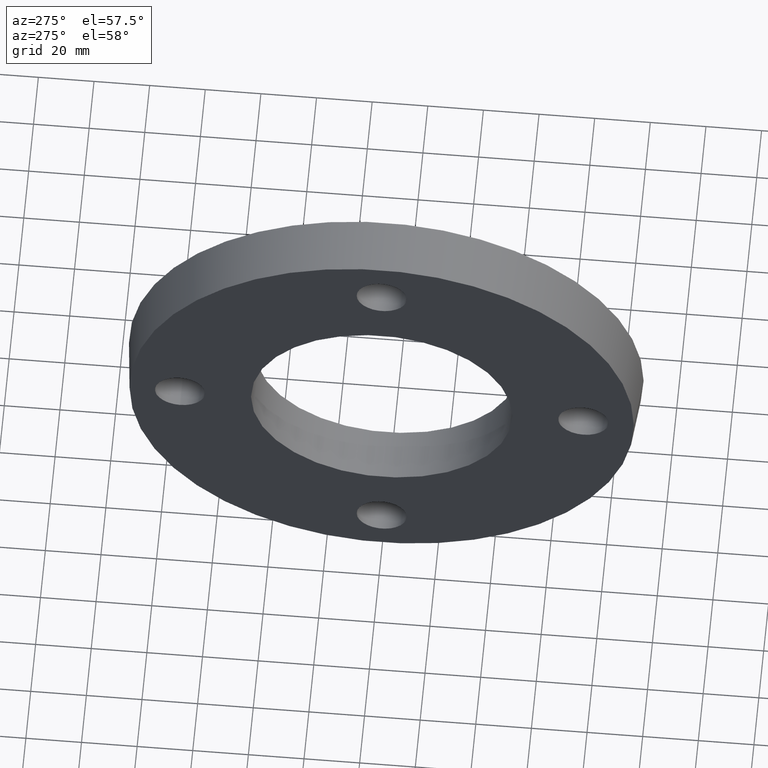
[diagram: clean part render]
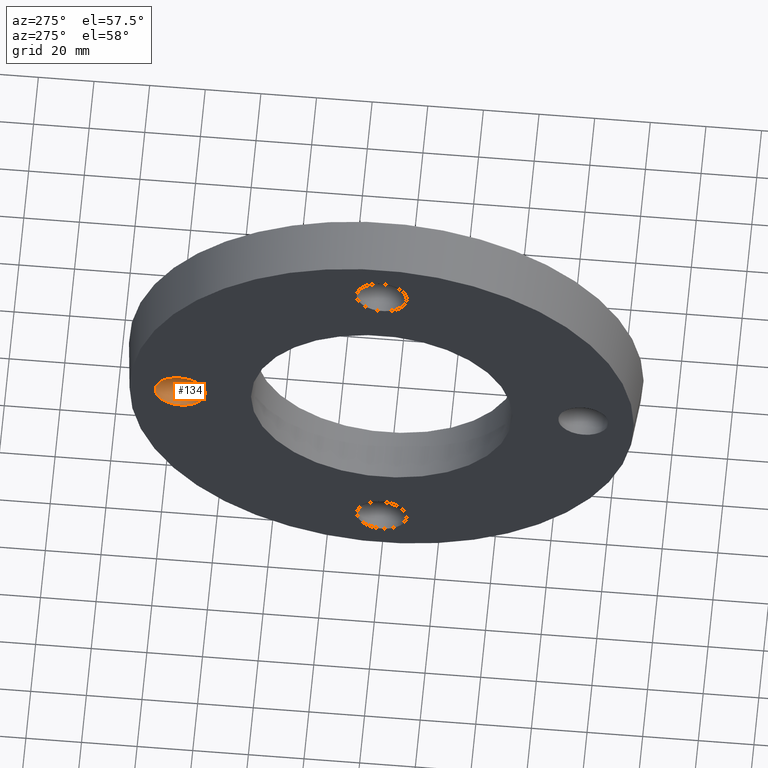
[diagram: same view with one face highlighted and labeled with its STEP entity id]
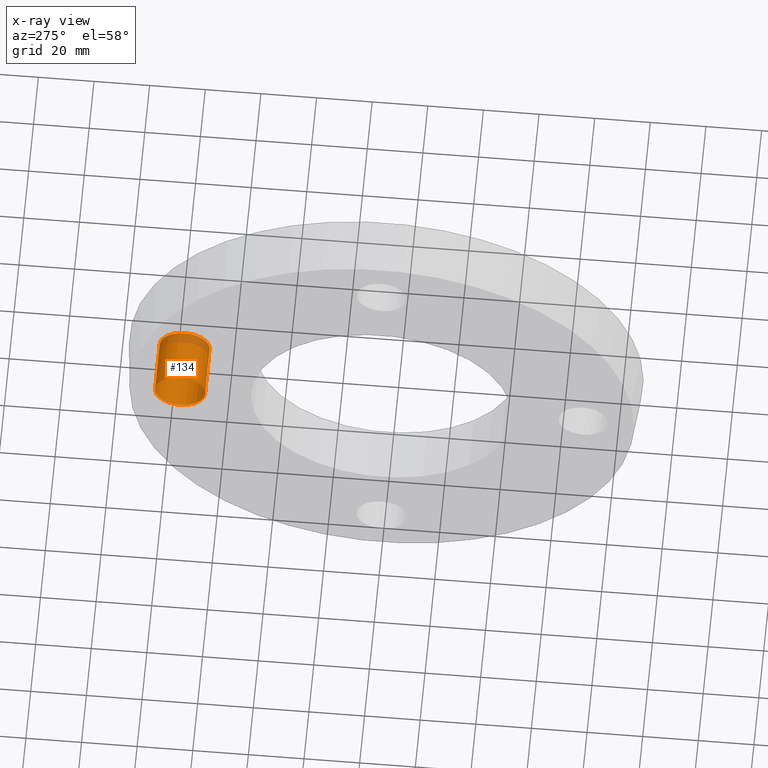
[diagram: x-ray of the same camera — body ghosted, the highlighted face saturated]
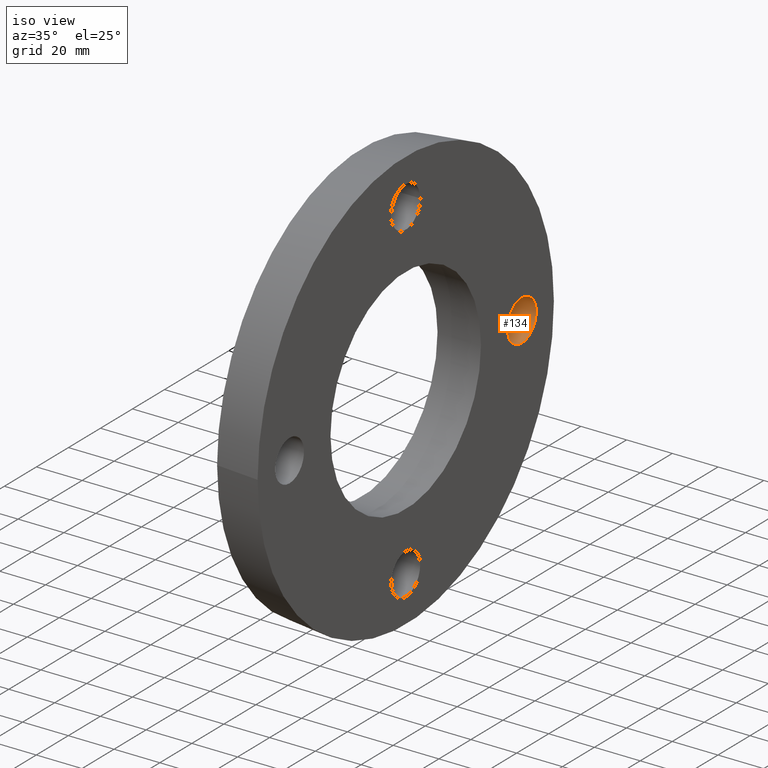
[diagram: same view with one face highlighted and labeled with its STEP entity id]
A machine part, auxiliary view. The second image highlights one B-rep face of the part: STEP entity #134.
The next image is the same camera in x-ray: the body ghosted, the highlighted face saturated — about 14% of this face is hidden behind the body in this view.
A second angle (iso view) of the same face is appended — the face is thin or edge-on in the first view.
In plain terms, the highlighted cylindrical surface (bore or boss wall) has radius 9 mm, axis along (-1, 0, 0).
Its self-contained STEP definition (entity closure, byte-faithful):
#21=FACE_BOUND('',#49,.T.);
#37=FACE_OUTER_BOUND('',#48,.T.);
#48=EDGE_LOOP('',(#108));
#49=EDGE_LOOP('',(#109));
#72=CIRCLE('',#151,9.);
#73=CIRCLE('',#152,9.);
#84=VERTEX_POINT('',#220);
#85=VERTEX_POINT('',#222);
#96=EDGE_CURVE('',#84,#84,#72,.T.);
#97=EDGE_CURVE('',#85,#85,#73,.T.);
#108=ORIENTED_EDGE('',*,*,#96,.F.);
#109=ORIENTED_EDGE('',*,*,#97,.F.);
#129=CYLINDRICAL_SURFACE('',#150,9.);
#134=ADVANCED_FACE('',(#37,#21),#129,.F.);
#150=AXIS2_PLACEMENT_3D('',#219,#181,#182);
#151=AXIS2_PLACEMENT_3D('',#221,#183,#184);
#152=AXIS2_PLACEMENT_3D('',#223,#185,#186);
#181=DIRECTION('center_axis',(-1.,0.,0.));
#182=DIRECTION('ref_axis',(0.,0.,1.));
#183=DIRECTION('center_axis',(1.,0.,0.));
#184=DIRECTION('ref_axis',(0.,0.,1.));
#185=DIRECTION('center_axis',(-1.,0.,0.));
#186=DIRECTION('ref_axis',(0.,0.,1.));
#219=CARTESIAN_POINT('Origin',(9.5,72.5,0.));
#220=CARTESIAN_POINT('',(-9.5,72.5,-9.));
#221=CARTESIAN_POINT('Origin',(-9.5,72.5,0.));
#222=CARTESIAN_POINT('',(9.5,72.5,-9.));
#223=CARTESIAN_POINT('Origin',(9.5,72.5,0.));